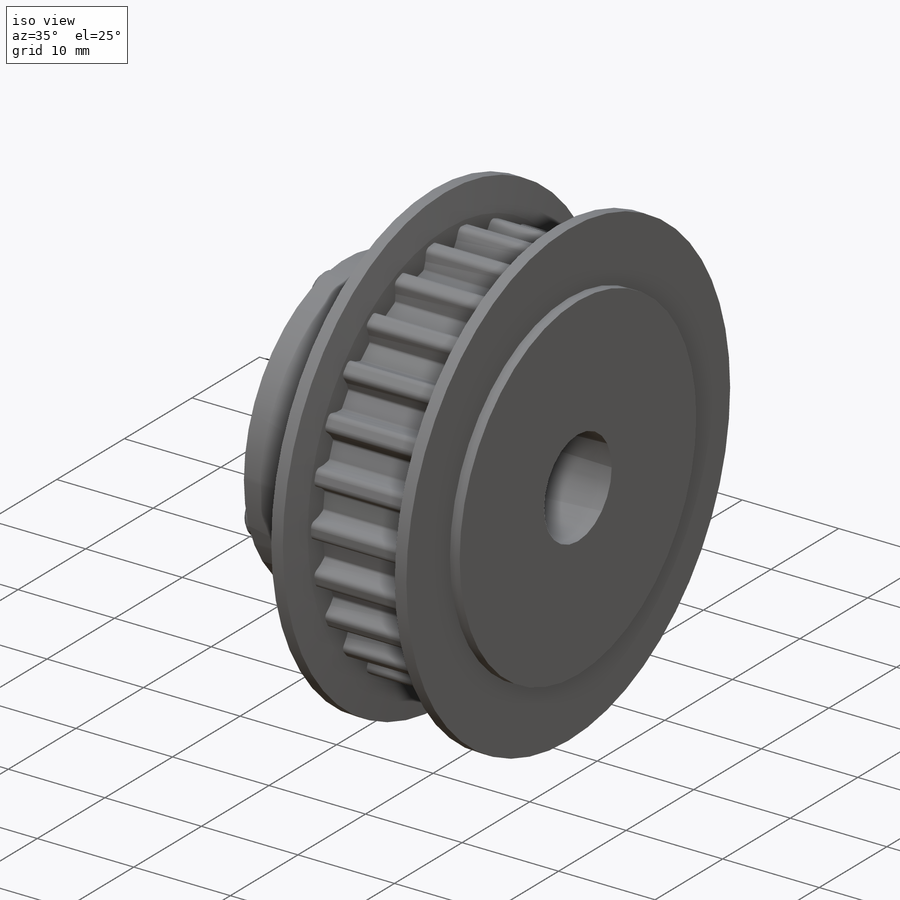
[diagram: iso view]
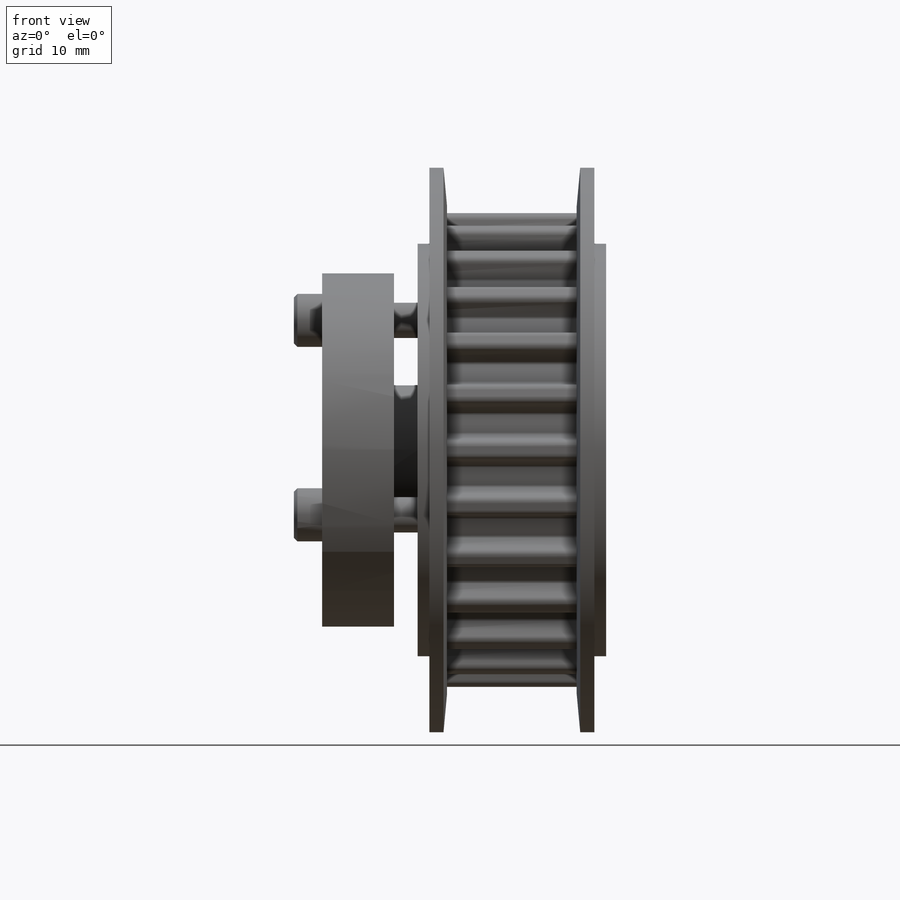
[diagram: front view]
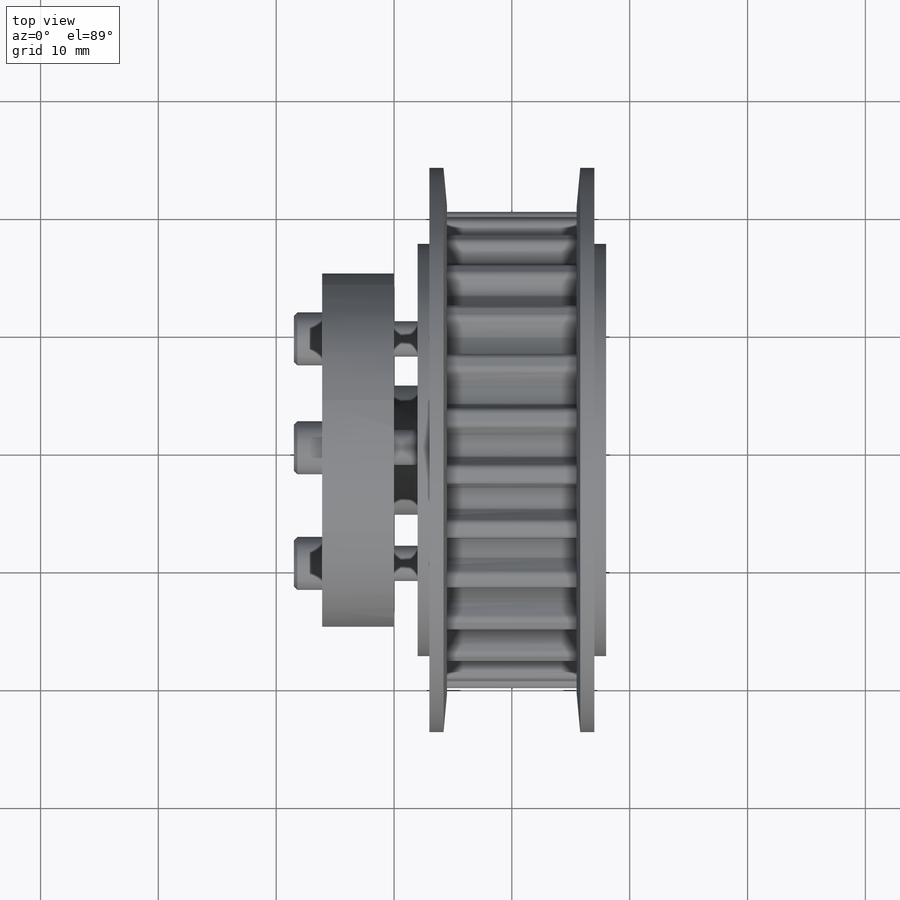
[diagram: top view]
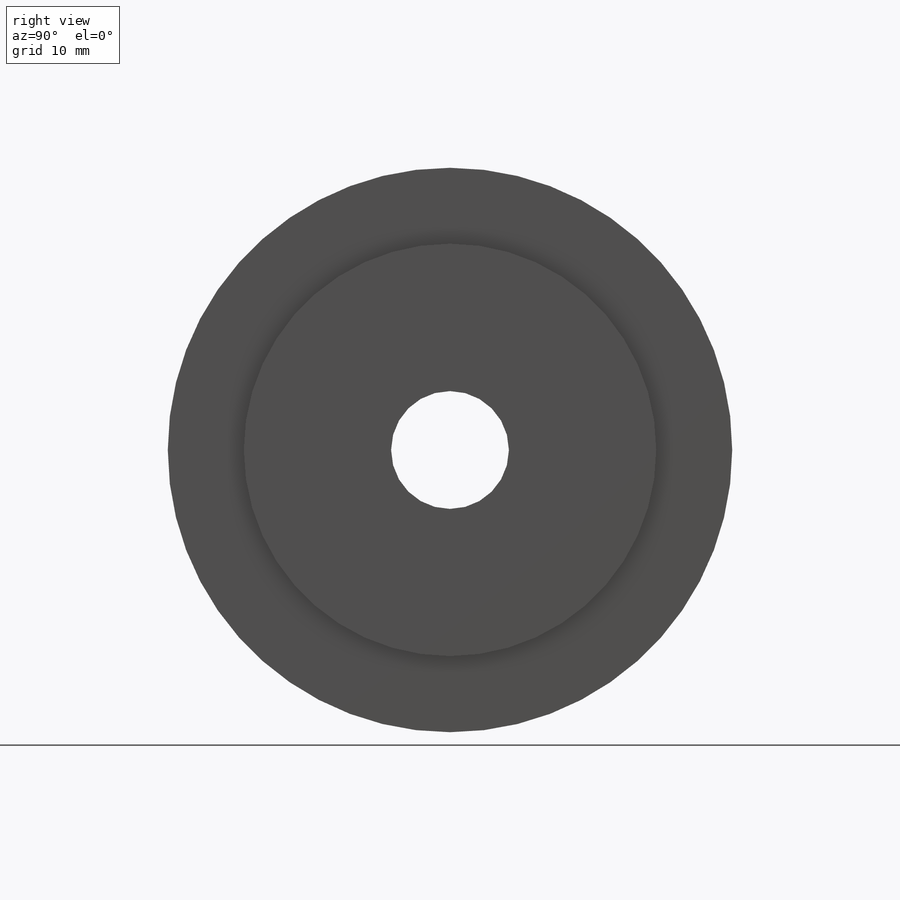
[diagram: right view]
SOLIDWORKS PART (.sldprt)
format: sldprt  version: not decoded by parser v0  size: 1,620,992 bytes
history: native  units: mm
features: sketch x14, cut_extrude x7, pattern_circular x6, revolve x5, plane x3, fillet x3, thread x3, material x1, cut_revolve x1, extrude x1 (+8 scaffold rows collapsed)
feature tree (52):
  scaffold x8  (default folders/planes/origin — collapsed)
  material  "材质 <未指定>"
  plane  "前视基准面"
  plane  "上视基准面"
  plane  "右视基准面"
  sketch  "草图1"  dims[D1=11.0mm D2=16.0mm D3=17.5mm D4=20.21mm]
  revolve  "旋转1"  Angle=360deg
  sketch  "草图2"  dims[c1.D1=20.84mm c1.D2=~19.734473mm c1.D3=3.275mm c2.D1=3.1mm c2.D2=1.77mm c2.D3=~2.013483mm c3.D3=20.0deg c3.D1=3.25mm]
  cut_extrude  "切除-拉伸1"  [1 undecoded]
  fillet  "圆角1"  Radius=0.55mm
  fillet  "圆角2"  Radius=0.25mm
  pattern_circular  "阵列(圆周)1"  Count=26 Angle=180deg
  sketch  "草图3"  dims[c1.D1=5.5mm c1.D2=0.5mm c1.D3=17.5mm c1.D4=23.95mm c2.D2=1.5mm c2.D5=20.69mm c2.D6=1.2mm]
  revolve  "旋转2"  Angle=360deg
  sketch  "草图4"  dims[D1=6.4mm D2=15.0mm]
  cut_revolve  "切除-旋转1"  Angle=360deg
  sketch  "草图5"  dims[c1.D5=0.3mm c1.D1=5.6mm c1.D2=2.0mm c1.D3=12.75mm c2.D1=14.5mm c2.D3=7.5mm c2.D4=7.0mm c2.D6=6.4mm]
  revolve  "旋转3"  Angle=360deg
  sketch  "草图6"  dims[D1=4.5mm D2=10.5mm]
  extrude  "凸台-拉伸1"  Depth=2.4mm
  fillet  "圆角3"  Radius=0.3mm
  sketch  "草图7"  dims[D1=2.58mm]
  cut_extrude  "切除-拉伸2"  Depth=0.9mm
  pattern_circular  "阵列(圆周)2"  Count=3 Angle=180deg
  sketch  "草图8"  dims[c1.D2=2.58mm c1.D1=47.9mm c2.D1=60.0deg c2.D3=10.5mm]
  cut_extrude  "切除-拉伸3"  [1 undecoded]
  thread  "装饰螺纹线1"  Diameter=3mm  [1 undecoded]
  pattern_circular  "阵列(圆周)3"  Count=3 Angle=120deg
  sketch  "草图9"  dims[D1=2.58mm D2=10.5mm]
  cut_extrude  "切除-拉伸4"  [1 undecoded]
  thread  "装饰螺纹线2"  Diameter=3mm  [1 undecoded]
  pattern_circular  "阵列(圆周)4"  Count=3 Angle=120deg
  sketch  "草图11"  dims[D1=15.0mm D2=5.5mm D3=8.1mm D4=2.0mm]
  revolve  "旋转4"  Angle=360deg
  sketch  "草图12"  dims[D1=11.0mm D2=2.4mm D3=1.5mm D4=2.25mm D5=0.3mm D6=45.0deg]
  revolve  "旋转5"  Angle=360deg
  sketch  "草图13"  dims[D1=2.58mm]
  cut_extrude  "切除-拉伸5"  Depth=0.9mm
  pattern_circular  "阵列(圆周)5"  Count=3 Angle=120deg
  sketch  "草图14"  dims[c1.D1=2.58mm c1.D2=11.0mm c1.D3=8.925mm c2.D3=60.0deg]
  cut_extrude  "切除-拉伸6"  [1 undecoded]
  thread  "装饰螺纹线3"  Diameter=3mm  [1 undecoded]
  pattern_circular  "阵列(圆周)6"  Count=3 Angle=120deg
  sketch  "草图15"  dims[D1=10.0mm]
  cut_extrude  "切除-拉伸7"  [1 undecoded]
decode coverage: 35 of 40 modeling features carry decoded parameters
note: ~ marks probable driven/reference dimensions
note: 8 parameter values undecoded
summary: no parameter record found for 5 features
note: suppression state not decoded; provenance and decode notes live in map.json
